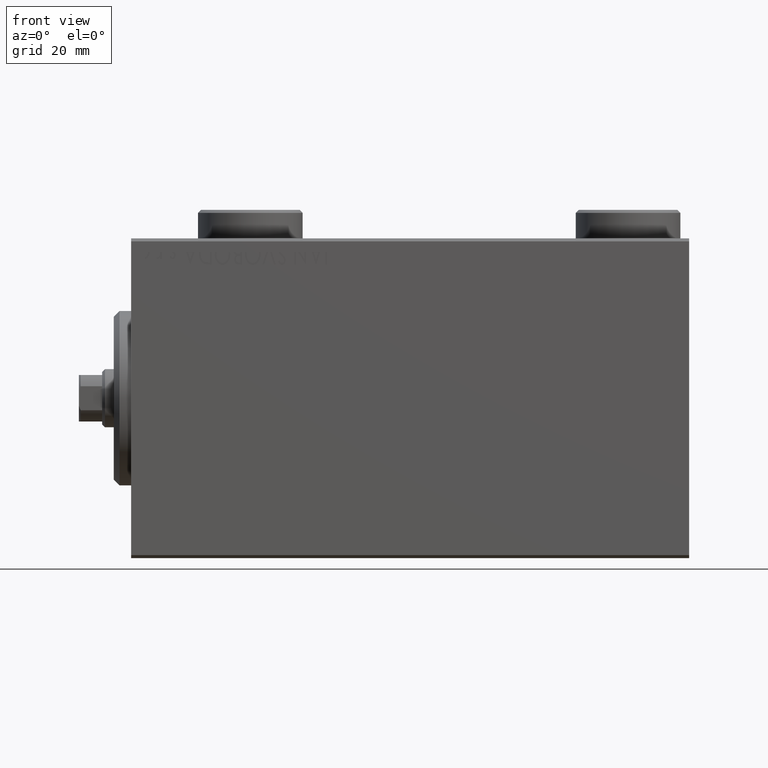
[diagram: clean part render]
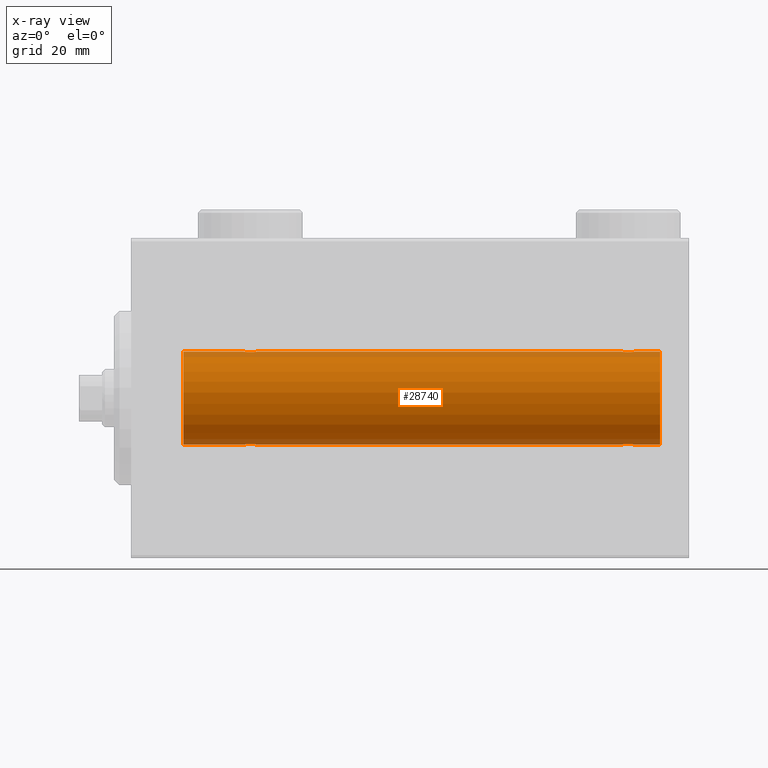
[diagram: x-ray — body ghosted, one internal face saturated and labeled with its STEP entity id]
A machine part, front view, then the same camera in x-ray: the body is ghosted and one INTERNAL B-rep face — a face not visible from any outside direction — is saturated and labeled: STEP entity #28740.
In plain terms, the highlighted cylindrical surface (partial cylindrical patch) has radius 8 mm, axis along (-1, -0, -0).
Its self-contained STEP definition (entity closure, byte-faithful):
#86 = VECTOR ( 'NONE', #27678, 1000.000000000000000 ) ;
#196 = CARTESIAN_POINT ( 'NONE',  ( 91.00000000000000000, 0.000000000000000000, 7.999999999999998224 ) ) ;
#732 = CARTESIAN_POINT ( 'NONE',  ( 84.40749082144731119, -0.6288424646912691429, 7.976670562295704592 ) ) ;
#859 = AXIS2_PLACEMENT_3D ( 'NONE', #12623, #1145, #5259 ) ;
#915 = EDGE_CURVE ( 'NONE', #15531, #1216, #17843, .T. ) ;
#944 = CARTESIAN_POINT ( 'NONE',  ( 84.28284287980513056, -0.3279446529214929407, 7.994696267489723951 ) ) ;
#1145 = DIRECTION ( 'NONE',  ( -1.000000000000000000, -0.000000000000000000, -0.000000000000000000 ) ) ;
#1216 = VERTEX_POINT ( 'NONE', #35430 ) ;
#1394 = CARTESIAN_POINT ( 'NONE',  ( 86.75000000000002842, 3.826567769925454797E-16, 7.999999999999998224 ) ) ;
#1535 = CARTESIAN_POINT ( 'NONE',  ( 19.50041313324087611, -0.7680324342712182561, 7.963892330120039276 ) ) ;
#1589 = VERTEX_POINT ( 'NONE', #7852 ) ;
#1853 = CARTESIAN_POINT ( 'NONE',  ( 86.26815485876451817, -0.9994562523959157341, 7.938165420771272629 ) ) ;
#1855 = CARTESIAN_POINT ( 'NONE',  ( 91.00000000000000000, 0.000000000000000000, 0.000000000000000000 ) ) ;
#1910 = CARTESIAN_POINT ( 'NONE',  ( 86.12714162834986098, -1.084361243153331378, -7.926301147147065684 ) ) ;
#2190 = ORIENTED_EDGE ( 'NONE', *, *, #27798, .T. ) ;
#2286 = EDGE_CURVE ( 'NONE', #12980, #28864, #10395, .T. ) ;
#2356 = CARTESIAN_POINT ( 'NONE',  ( 21.71715712019488009, -0.3279446529214856687, -7.994696267489723951 ) ) ;
#2593 = CARTESIAN_POINT ( 'NONE',  ( 21.49958686675913810, -0.7680324342712174790, -7.963892330120039276 ) ) ;
#2721 = ORIENTED_EDGE ( 'NONE', *, *, #13594, .T. ) ;
#3110 = VERTEX_POINT ( 'NONE', #10402 ) ;
#3312 = B_SPLINE_CURVE_WITH_KNOTS ( 'NONE', 3,
 ( #32179, #28946, #42995, #19037, #1535, #43902, #40206, #33076, #33531, #5440, #40656, #26173, #5663, #23401, #26625, #30086, #26861, #29861, #25942, #16246 ),
 .UNSPECIFIED., .F., .F.,
 ( 4, 2, 2, 2, 2, 2, 2, 2, 2, 4 ),
 ( 0.003914068143704974717, 0.004403205918210087270, 0.004892343692715199824, 0.005136912579967756534, 0.005381481467220313245, 0.005870619241725426665, 0.006359757016230540086, 0.006848894790735652639, 0.007338032565240766060, 0.007827170339745878613 ),
 .UNSPECIFIED. ) ;
#3604 = ORIENTED_EDGE ( 'NONE', *, *, #11563, .F. ) ;
#4176 = ORIENTED_EDGE ( 'NONE', *, *, #915, .F. ) ;
#4386 = CARTESIAN_POINT ( 'NONE',  ( 84.67312100220863158, -0.9409612394163545668, 7.944680966683010936 ) ) ;
#4844 = CARTESIAN_POINT ( 'NONE',  ( 85.66440551148905058, -1.250104850332079520, 7.901723728054485640 ) ) ;
#5259 = DIRECTION ( 'NONE',  ( 0.000000000000000000, 0.000000000000000000, 1.000000000000000000 ) ) ;
#5292 = DIRECTION ( 'NONE',  ( 0.000000000000000000, 0.000000000000000000, 1.000000000000000000 ) ) ;
#5440 = CARTESIAN_POINT ( 'NONE',  ( 20.17169333885885862, -1.217212176555599878, 7.907113222863031865 ) ) ;
#5525 = CARTESIAN_POINT ( 'NONE',  ( 86.75000000000000000, -0.1654128203352888959, 7.999999999999998224 ) ) ;
#5581 = CARTESIAN_POINT ( 'NONE',  ( 85.82830666114118401, -1.217212176555608094, -7.907113222863028312 ) ) ;
#5587 = CARTESIAN_POINT ( 'NONE',  ( 19.50158244334252089, -0.7695044314719098333, -7.963745725343515325 ) ) ;
#5663 = CARTESIAN_POINT ( 'NONE',  ( 20.82701716371747480, -1.217515856520238637, 7.907063872927298398 ) ) ;
#6040 = CARTESIAN_POINT ( 'NONE',  ( 21.05544625654724200, -1.122809931695431640, -7.920878051565290789 ) ) ;
#6348 = DIRECTION ( 'NONE',  ( -1.000000000000000000, -0.000000000000000000, -0.000000000000000000 ) ) ;
#6853 = CARTESIAN_POINT ( 'NONE',  ( 21.75000000000000355, 2.367508772235555199E-16, 7.999999999999998224 ) ) ;
#7852 = CARTESIAN_POINT ( 'NONE',  ( 86.75000000000002842, 3.826567769925454797E-16, 7.999999999999998224 ) ) ;
#8109 = ORIENTED_EDGE ( 'NONE', *, *, #2286, .T. ) ;
#8586 = CARTESIAN_POINT ( 'NONE',  ( 84.25000000000002842, -0.1654128203353027737, -7.999999999999996447 ) ) ;
#8966 = CARTESIAN_POINT ( 'NONE',  ( 19.25000000000000711, -3.107364149877583097E-15, -7.999999999999998224 ) ) ;
#9028 = CARTESIAN_POINT ( 'NONE',  ( 84.50158244334252799, -0.7695044314719188261, -7.963745725343513548 ) ) ;
#9035 = CARTESIAN_POINT ( 'NONE',  ( 20.33559448851098850, -1.250104850332076634, -7.901723728054487417 ) ) ;
#9200 = CARTESIAN_POINT ( 'NONE',  ( 85.82701716371745704, -1.217515856520240192, 7.907063872927293957 ) ) ;
#9259 = CARTESIAN_POINT ( 'NONE',  ( 84.87056207267774255, -1.092287957405127408, -7.925333492638528377 ) ) ;
#9473 = LINE ( 'NONE', #45176, #86 ) ;
#9481 = CARTESIAN_POINT ( 'NONE',  ( 84.40834966532098349, -0.6303134207468096273, -7.976551562999471656 ) ) ;
#9913 = EDGE_CURVE ( 'NONE', #32160, #36516, #31156, .T. ) ;
#10162 = CARTESIAN_POINT ( 'NONE',  ( 91.00000000000000000, 9.797174393178823685E-16, -7.999999999999998224 ) ) ;
#10395 = LINE ( 'NONE', #10162, #37718 ) ;
#10402 = CARTESIAN_POINT ( 'NONE',  ( 21.75000000000000355, 9.797173987965608855E-16, -7.999999999999998224 ) ) ;
#11208 = LINE ( 'NONE', #196, #23197 ) ;
#11298 = CARTESIAN_POINT ( 'NONE',  ( 84.50041313324086900, -0.7680324342712208097, 7.963892330120033947 ) ) ;
#11563 = EDGE_CURVE ( 'NONE', #1216, #1589, #11208, .T. ) ;
#11615 = EDGE_CURVE ( 'NONE', #27094, #36516, #3312, .T. ) ;
#12037 = B_SPLINE_CURVE_WITH_KNOTS ( 'NONE', 3,
 ( #44269, #37352, #2356, #41498, #2593, #41265, #27234, #30917, #6040, #34139, #16173, #9035, #37579, #19417, #12721, #5587, #19644, #33673, #33454, #30689 ),
 .UNSPECIFIED., .F., .F.,
 ( 4, 2, 2, 2, 2, 2, 2, 2, 2, 4 ),
 ( 0.003914068143704951298, 0.004403205918210062117, 0.004892343692715172936, 0.005136912579967725309, 0.005381481467220276815, 0.005870619241725390236, 0.006359757016230503657, 0.006848894790735617077, 0.007338032565240730498, 0.007827170339745843919 ),
 .UNSPECIFIED. ) ;
#12178 = CYLINDRICAL_SURFACE ( 'NONE', #859, 7.999999999999998224 ) ;
#12623 = CARTESIAN_POINT ( 'NONE',  ( 91.00000000000000000, 0.000000000000000000, 0.000000000000000000 ) ) ;
#12715 = CARTESIAN_POINT ( 'NONE',  ( 86.49958686675913100, -0.7680324342712141483, -7.963892330120035723 ) ) ;
#12721 = CARTESIAN_POINT ( 'NONE',  ( 19.73184514123549249, -0.9994562523959139577, -7.938165420771276182 ) ) ;
#12924 = EDGE_CURVE ( 'NONE', #32160, #1589, #23531, .T. ) ;
#12980 = VERTEX_POINT ( 'NONE', #8966 ) ;
#13409 = ORIENTED_EDGE ( 'NONE', *, *, #20896, .T. ) ;
#13594 = EDGE_CURVE ( 'NONE', #23793, #35330, #39411, .T. ) ;
#14975 = CARTESIAN_POINT ( 'NONE',  ( 84.73732994206314117, -0.9937204387496767488, 7.938174152191988853 ) ) ;
#15531 = VERTEX_POINT ( 'NONE', #17275 ) ;
#15635 = AXIS2_PLACEMENT_3D ( 'NONE', #1855, #19583, #5292 ) ;
#15719 = CARTESIAN_POINT ( 'NONE',  ( 86.75000000000001421, -0.1632520343443081834, -8.000000000000000000 ) ) ;
#15996 = ORIENTED_EDGE ( 'NONE', *, *, #39670, .T. ) ;
#16173 = CARTESIAN_POINT ( 'NONE',  ( 20.66599605016009988, -1.249894643705219854, -7.901756981264366431 ) ) ;
#16246 = CARTESIAN_POINT ( 'NONE',  ( 21.75000000000000355, 2.367508772235555199E-16, 7.999999999999998224 ) ) ;
#16393 = CARTESIAN_POINT ( 'NONE',  ( 86.59250917855273144, -0.6288424646912651461, -7.976670562295706368 ) ) ;
#17275 = CARTESIAN_POINT ( 'NONE',  ( 91.00000000000000000, 9.797174393178823685E-16, -7.999999999999998224 ) ) ;
#17471 = CARTESIAN_POINT ( 'NONE',  ( 91.00000000000000000, 9.797174393178823685E-16, -7.999999999999998224 ) ) ;
#17486 = ORIENTED_EDGE ( 'NONE', *, *, #22816, .F. ) ;
#17843 = CIRCLE ( 'NONE', #15635, 7.999999999999998224 ) ;
#18211 = CARTESIAN_POINT ( 'NONE',  ( 84.25000000000001421, -4.052102368803510290E-23, 7.999999999999998224 ) ) ;
#19037 = CARTESIAN_POINT ( 'NONE',  ( 19.40749082144729343, -0.6288424646912651461, 7.976670562295706368 ) ) ;
#19124 = CARTESIAN_POINT ( 'NONE',  ( 86.71666607977188335, -0.3297258132310484924, 7.994620111903502746 ) ) ;
#19180 = CARTESIAN_POINT ( 'NONE',  ( 85.33559448851102047, -1.250104850332087736, -7.901723728054487417 ) ) ;
#19417 = CARTESIAN_POINT ( 'NONE',  ( 19.87056207267771413, -1.092287957405118970, -7.925333492638526600 ) ) ;
#19583 = DIRECTION ( 'NONE',  ( -1.000000000000000000, 0.000000000000000000, 0.000000000000000000 ) ) ;
#19636 = CARTESIAN_POINT ( 'NONE',  ( 86.05544625654727042, -1.122809931695437413, -7.920878051565288125 ) ) ;
#19644 = CARTESIAN_POINT ( 'NONE',  ( 19.40834966532100481, -0.6303134207467991912, -7.976551562999473433 ) ) ;
#20094 = CARTESIAN_POINT ( 'NONE',  ( 84.25000000000001421, -1.276489185009471567E-14, -7.999999999999998224 ) ) ;
#20896 = EDGE_CURVE ( 'NONE', #3110, #12980, #12037, .T. ) ;
#20937 = DIRECTION ( 'NONE',  ( -1.000000000000000000, -0.000000000000000000, -0.000000000000000000 ) ) ;
#22128 = CARTESIAN_POINT ( 'NONE',  ( 85.17169333885887283, -1.217212176555603431, 7.907113222863028312 ) ) ;
#22192 = ORIENTED_EDGE ( 'NONE', *, *, #12924, .T. ) ;
#22816 = EDGE_CURVE ( 'NONE', #27094, #33836, #38337, .T. ) ;
#23197 = VECTOR ( 'NONE', #31961, 1000.000000000000000 ) ;
#23401 = CARTESIAN_POINT ( 'NONE',  ( 21.12943792732229298, -1.092287957405117194, 7.925333492638530153 ) ) ;
#23531 = B_SPLINE_CURVE_WITH_KNOTS ( 'NONE', 3,
 ( #18211, #32261, #944, #732, #11298, #4386, #14975, #25574, #39606, #22128, #30397, #4844, #9200, #30170, #1853, #37062, #36831, #19124, #5525, #1394 ),
 .UNSPECIFIED., .F., .F.,
 ( 4, 2, 2, 2, 2, 2, 2, 2, 2, 4 ),
 ( 0.003914068143704953900, 0.004403205918210113291, 0.004892343692715272682, 0.005136912579967838066, 0.005381481467220403450, 0.005870619241725495187, 0.006359757016230586923, 0.006848894790735679527, 0.007338032565240772132, 0.007827170339745864736 ),
 .UNSPECIFIED. ) ;
#23793 = VERTEX_POINT ( 'NONE', #34982 ) ;
#24599 = CARTESIAN_POINT ( 'NONE',  ( 9.000000000000007105, 9.797174393178823685E-16, -7.999999999999998224 ) ) ;
#25574 = CARTESIAN_POINT ( 'NONE',  ( 84.87285837165013902, -1.084361243153322940, 7.926301147147063908 ) ) ;
#25942 = CARTESIAN_POINT ( 'NONE',  ( 21.75000000000000711, -0.1654128203352893955, 8.000000000000001776 ) ) ;
#26003 = FACE_OUTER_BOUND ( 'NONE', #36454, .T. ) ;
#26173 = CARTESIAN_POINT ( 'NONE',  ( 20.66440551148902571, -1.250104850332075523, 7.901723728054487417 ) ) ;
#26625 = CARTESIAN_POINT ( 'NONE',  ( 21.26815485876451461, -0.9994562523959116263, 7.938165420771274405 ) ) ;
#26861 = CARTESIAN_POINT ( 'NONE',  ( 21.59165033467900940, -0.6303134207467964156, 7.976551562999473433 ) ) ;
#27094 = VERTEX_POINT ( 'NONE', #28352 ) ;
#27230 = DIRECTION ( 'NONE',  ( -1.000000000000000000, -0.000000000000000000, -0.000000000000000000 ) ) ;
#27234 = CARTESIAN_POINT ( 'NONE',  ( 21.26267005793691212, -0.9937204387496720859, -7.938174152191990629 ) ) ;
#27610 = LINE ( 'NONE', #17471, #31205 ) ;
#27678 = DIRECTION ( 'NONE',  ( -1.000000000000000000, -0.000000000000000000, -0.000000000000000000 ) ) ;
#27798 = EDGE_CURVE ( 'NONE', #15531, #23793, #9473, .T. ) ;
#27881 = ORIENTED_EDGE ( 'NONE', *, *, #44119, .T. ) ;
#28352 = CARTESIAN_POINT ( 'NONE',  ( 19.25000000000000000, -4.052102368803510290E-23, 7.999999999999998224 ) ) ;
#28740 = ADVANCED_FACE ( 'NONE', ( #26003 ), #12178, .F. ) ;
#28864 = VERTEX_POINT ( 'NONE', #24599 ) ;
#28946 = CARTESIAN_POINT ( 'NONE',  ( 19.25000000000000355, -0.1632520343443079336, 8.000000000000000000 ) ) ;
#29780 = CARTESIAN_POINT ( 'NONE',  ( 85.17298283628258559, -1.217515856520248407, -7.907063872927295733 ) ) ;
#29861 = CARTESIAN_POINT ( 'NONE',  ( 21.71666607977187269, -0.3297258132310499357, 7.994620111903506299 ) ) ;
#29996 = CARTESIAN_POINT ( 'NONE',  ( 84.25000000000001421, -1.276489185009471567E-14, -7.999999999999998224 ) ) ;
#30086 = CARTESIAN_POINT ( 'NONE',  ( 21.49841755665748622, -0.7695044314719063916, 7.963745725343518878 ) ) ;
#30170 = CARTESIAN_POINT ( 'NONE',  ( 86.12943792732230008, -1.092287957405119414, 7.925333492638526600 ) ) ;
#30397 = CARTESIAN_POINT ( 'NONE',  ( 85.33400394983991077, -1.249894643705222297, 7.901756981264366431 ) ) ;
#30584 = ORIENTED_EDGE ( 'NONE', *, *, #11615, .T. ) ;
#30689 = CARTESIAN_POINT ( 'NONE',  ( 19.25000000000000711, -3.107364149877583097E-15, -7.999999999999998224 ) ) ;
#30917 = CARTESIAN_POINT ( 'NONE',  ( 21.12714162834985387, -1.084361243153318721, -7.926301147147063908 ) ) ;
#31156 = LINE ( 'NONE', #38501, #43700 ) ;
#31205 = VECTOR ( 'NONE', #20937, 1000.000000000000000 ) ;
#31833 = DIRECTION ( 'NONE',  ( -1.000000000000000000, -0.000000000000000000, -0.000000000000000000 ) ) ;
#31961 = DIRECTION ( 'NONE',  ( -1.000000000000000000, -0.000000000000000000, -0.000000000000000000 ) ) ;
#32160 = VERTEX_POINT ( 'NONE', #40660 ) ;
#32179 = CARTESIAN_POINT ( 'NONE',  ( 19.25000000000000000, -4.052102368803510290E-23, 7.999999999999998224 ) ) ;
#32210 = ORIENTED_EDGE ( 'NONE', *, *, #9913, .F. ) ;
#32261 = CARTESIAN_POINT ( 'NONE',  ( 84.25000000000001421, -0.1632520343443091548, 7.999999999999998224 ) ) ;
#33076 = CARTESIAN_POINT ( 'NONE',  ( 19.87285837165014613, -1.084361243153319387, 7.926301147147063908 ) ) ;
#33447 = CARTESIAN_POINT ( 'NONE',  ( 86.75000000000002842, 9.797173987969553159E-16, -7.999999999999998224 ) ) ;
#33454 = CARTESIAN_POINT ( 'NONE',  ( 19.25000000000000711, -0.1654128203352910609, -7.999999999999998224 ) ) ;
#33531 = CARTESIAN_POINT ( 'NONE',  ( 19.94455374345276155, -1.122809931695431640, 7.920878051565288125 ) ) ;
#33668 = CARTESIAN_POINT ( 'NONE',  ( 86.71715712019492628, -0.3279446529214858908, -7.994696267489722175 ) ) ;
#33673 = CARTESIAN_POINT ( 'NONE',  ( 19.28333392022813797, -0.3297258132310537104, -7.994620111903500970 ) ) ;
#33742 = VECTOR ( 'NONE', #6348, 1000.000000000000000 ) ;
#33836 = VERTEX_POINT ( 'NONE', #41339 ) ;
#34026 = DIRECTION ( 'NONE',  ( 0.000000000000000000, 0.000000000000000000, 1.000000000000000000 ) ) ;
#34130 = CARTESIAN_POINT ( 'NONE',  ( 86.32687899779145368, -0.9409612394163503479, -7.944680966683013601 ) ) ;
#34139 = CARTESIAN_POINT ( 'NONE',  ( 20.82830666114114848, -1.217212176555599434, -7.907113222863026536 ) ) ;
#34982 = CARTESIAN_POINT ( 'NONE',  ( 86.75000000000002842, 9.797173987969553159E-16, -7.999999999999998224 ) ) ;
#35330 = VERTEX_POINT ( 'NONE', #29996 ) ;
#35430 = CARTESIAN_POINT ( 'NONE',  ( 91.00000000000000000, 0.000000000000000000, 7.999999999999998224 ) ) ;
#36454 = EDGE_LOOP ( 'NONE', ( #4176, #2190, #2721, #15996, #13409, #8109, #27881, #17486, #30584, #32210, #22192, #3604 ) ) ;
#36516 = VERTEX_POINT ( 'NONE', #6853 ) ;
#36831 = CARTESIAN_POINT ( 'NONE',  ( 86.59165033467904493, -0.6303134207467974148, 7.976551562999476985 ) ) ;
#37062 = CARTESIAN_POINT ( 'NONE',  ( 86.49841755665750043, -0.7695044314719109435, 7.963745725343518878 ) ) ;
#37121 = CARTESIAN_POINT ( 'NONE',  ( 86.26267005793690146, -0.9937204387496841873, -7.938174152191988853 ) ) ;
#37182 = AXIS2_PLACEMENT_3D ( 'NONE', #41386, #45080, #34026 ) ;
#37345 = CARTESIAN_POINT ( 'NONE',  ( 84.73184514123553868, -0.9994562523959246159, -7.938165420771276182 ) ) ;
#37352 = CARTESIAN_POINT ( 'NONE',  ( 21.75000000000000355, -0.1632520343443068511, -7.999999999999998224 ) ) ;
#37579 = CARTESIAN_POINT ( 'NONE',  ( 20.17298283628253230, -1.217515856520239970, -7.907063872927298398 ) ) ;
#37718 = VECTOR ( 'NONE', #27230, 1000.000000000000000 ) ;
#38337 = LINE ( 'NONE', #45025, #33742 ) ;
#38501 = CARTESIAN_POINT ( 'NONE',  ( 91.00000000000000000, 0.000000000000000000, 7.999999999999998224 ) ) ;
#38675 = CIRCLE ( 'NONE', #37182, 7.999999999999998224 ) ;
#39411 = B_SPLINE_CURVE_WITH_KNOTS ( 'NONE', 3,
 ( #33447, #15719, #33668, #16393, #12715, #34130, #37121, #1910, #19636, #5581, #40806, #19180, #29780, #9259, #37345, #9028, #9481, #40343, #8586, #20094 ),
 .UNSPECIFIED., .F., .F.,
 ( 4, 2, 2, 2, 2, 2, 2, 2, 2, 4 ),
 ( 0.003914068143704947829, 0.004403205918210036963, 0.004892343692715126965, 0.005136912579967671533, 0.005381481467220216100, 0.005870619241725345133, 0.006359757016230472432, 0.006848894790735599730, 0.007338032565240728763, 0.007827170339745857797 ),
 .UNSPECIFIED. ) ;
#39606 = CARTESIAN_POINT ( 'NONE',  ( 84.94455374345277221, -1.122809931695436525, 7.920878051565286349 ) ) ;
#39670 = EDGE_CURVE ( 'NONE', #35330, #3110, #27610, .T. ) ;
#40206 = CARTESIAN_POINT ( 'NONE',  ( 19.73732994206309499, -0.9937204387496718638, 7.938174152191987076 ) ) ;
#40343 = CARTESIAN_POINT ( 'NONE',  ( 84.28333392022814508, -0.3297258132310611489, -7.994620111903500970 ) ) ;
#40656 = CARTESIAN_POINT ( 'NONE',  ( 20.33400394983990722, -1.249894643705219410, 7.901756981264364654 ) ) ;
#40660 = CARTESIAN_POINT ( 'NONE',  ( 84.25000000000001421, -4.052102368803510290E-23, 7.999999999999998224 ) ) ;
#40806 = CARTESIAN_POINT ( 'NONE',  ( 85.66599605016011765, -1.249894643705230068, -7.901756981264361102 ) ) ;
#41265 = CARTESIAN_POINT ( 'NONE',  ( 21.32687899779140750, -0.9409612394163509030, -7.944680966683015377 ) ) ;
#41339 = CARTESIAN_POINT ( 'NONE',  ( 9.000000000000007105, 0.000000000000000000, 7.999999999999998224 ) ) ;
#41386 = CARTESIAN_POINT ( 'NONE',  ( 9.000000000000007105, 0.000000000000000000, 0.000000000000000000 ) ) ;
#41498 = CARTESIAN_POINT ( 'NONE',  ( 21.59250917855271013, -0.6288424646912625926, -7.976670562295708145 ) ) ;
#42995 = CARTESIAN_POINT ( 'NONE',  ( 19.28284287980512346, -0.3279446529214880002, 7.994696267489722175 ) ) ;
#43700 = VECTOR ( 'NONE', #31833, 1000.000000000000000 ) ;
#43902 = CARTESIAN_POINT ( 'NONE',  ( 19.67312100220859605, -0.9409612394163517912, 7.944680966683013601 ) ) ;
#44119 = EDGE_CURVE ( 'NONE', #28864, #33836, #38675, .T. ) ;
#44269 = CARTESIAN_POINT ( 'NONE',  ( 21.75000000000000355, 9.797173987965608855E-16, -7.999999999999998224 ) ) ;
#45025 = CARTESIAN_POINT ( 'NONE',  ( 91.00000000000000000, 0.000000000000000000, 7.999999999999998224 ) ) ;
#45080 = DIRECTION ( 'NONE',  ( -1.000000000000000000, 0.000000000000000000, 0.000000000000000000 ) ) ;
#45176 = CARTESIAN_POINT ( 'NONE',  ( 91.00000000000000000, 9.797174393178823685E-16, -7.999999999999998224 ) ) ;